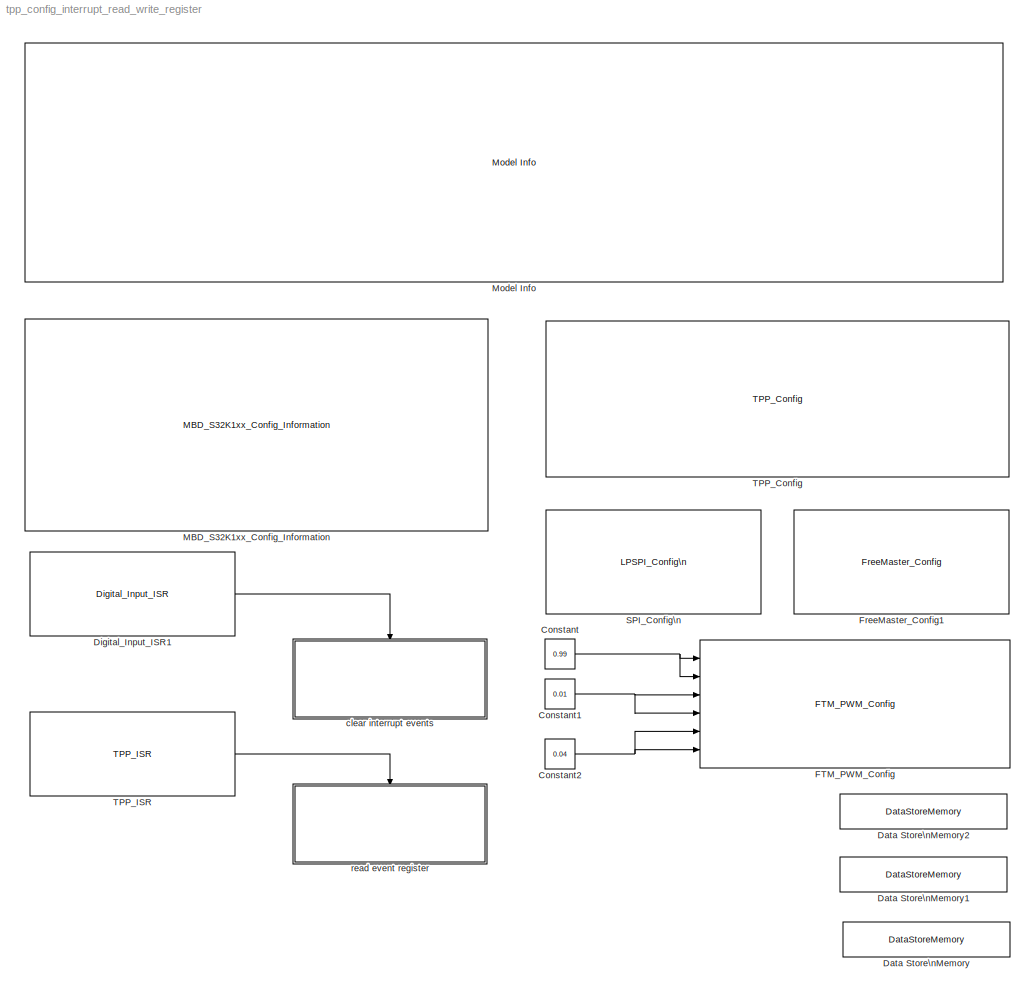
MODEL tpp_config_interrupt_read_write_register
KIND model
CONFIG InitFcn = mbd_s32k_consistency_checks(bdroot(gcs));
BLOCK [Constant] Constant
  OutDataTypeStr = single
  SID = 17
  Value = 0.99
BLOCK [Constant] Constant1
  OutDataTypeStr = single
  SID = 70
  Value = 0.01
BLOCK [Constant] Constant2
  OutDataTypeStr = single
  SID = 71
  Value = 0.04
BLOCK [DataStoreMemory] Data Store\nMemory
  DataStoreName = Button
  OutDataTypeStr = boolean
  ReadBeforeWriteMsg = warning
  SID = 67
  ShowAdditionalParam = off
  WriteAfterReadMsg = warning
  WriteAfterWriteMsg = warning
BLOCK [DataStoreMemory] Data Store\nMemory1
  DataStoreName = Interrupt
  OutDataTypeStr = boolean
  ReadBeforeWriteMsg = warning
  SID = 63
  ShowAdditionalParam = off
  WriteAfterReadMsg = warning
  WriteAfterWriteMsg = warning
BLOCK [DataStoreMemory] Data Store\nMemory2
  DataStoreName = reg
  OutDataTypeStr = uint8
  ReadBeforeWriteMsg = warning
  SID = 51
  ShowAdditionalParam = off
  WriteAfterReadMsg = warning
  WriteAfterWriteMsg = warning
BLOCK [Reference] Digital_Input_ISR1  REF=mbd_s32k1xx_ec_toolbox/GPIO Blocks/Digital_Input_ISR
  Ports = [0, 1]
  SID = 55
  SourceBlock = mbd_s32k1xx_ec_toolbox/GPIO Blocks/Digital_Input_ISR
  SourceType = gpi_s32k_isr
  gpio_pin = PTC13: [PTC13 | Port C I/O]
  irqc = on falling-edge
  prio = 15
BLOCK [Reference] FTM_PWM_Config  REF=mbd_s32k1xx_ec_toolbox/Motor Control Blocks/FTM Blocks/FTM_PWM_Config
  Ports = [6]
  SID = 5
  SourceBlock = mbd_s32k1xx_ec_toolbox/Motor Control Blocks/FTM Blocks/FTM_PWM_Config
  SourceType = FTM_s32k_pwm_config_block
  chTrigger0 = off
  chTrigger1 = off
  chTrigger2 = off
  chTrigger3 = off
  chTrigger4 = off
  chTrigger5 = off
  chTrigger6 = off
  chTrigger7 = off
  chan0En = on
  chan0Type = Independent
  chan2En = on
  chan2Type = Independent
  chan4En = on
  chan4Type = Independent
  chan6En = off
  chan6Type = Independent
  chnMatch0 = off
  chnMatch1 = off
  chnMatch2 = off
  chnMatch3 = off
  chnMatch4 = off
  chnMatch5 = off
  chnMatch6 = off
  chnMatch7 = off
  deadtimeNs = 0
  deadtimePrescaler = Divide by 1
  deadtimeTicks = 0
  deadtimeUnits = Nanoseconds
  dutyCycleCh0 = 0.002
  dutyCycleCh1 = 0.002
  dutyCycleCh2 = 0.002
  dutyCycleCh3 = 0.002
  dutyCycleCh4 = 0.002
  dutyCycleCh5 = 0.002
  dutyCycleCh6 = 0.25
  dutyCycleCh7 = 0.25
  dutyCycleSim = off
  fault_disen_0 = off
  fault_disen_1 = off
  fault_disen_2 = off
  fault_disen_3 = off
  fault_filter_0 = off
  fault_filter_1 = off
  fault_filter_2 = off
  fault_filter_3 = off
  fault_pin_0 = None
  fault_pin_1 = None
  fault_pin_2 = None
  fault_pin_3 = None
  fault_polarity_0 = Active High
  fault_polarity_1 = Active high
  fault_polarity_2 = Active high
  fault_polarity_3 = Active high
  ftmMode = Center-Aligned PWM
  ftmModule = 3
  ftmPeriod = 4000
  ftmPrescaler = Divide by 1
  ftmPwmUnits = Hz
  ftmSourceClock = 80 MHz
  initTrigger = off
  mcuTargetUpdate = on
  outFrequency = 20000
  outputComplem0 = Main inverted
  outputComplem2 = Main inverted
  outputComplem4 = Main inverted
  outputComplem6 = Main duplicated
  outputLevel0 = Low
  outputLevel1 = Low
  outputLevel2 = Low
  outputLevel3 = Low
  outputLevel4 = Low
  outputLevel5 = Low
  outputLevel6 = Low
  outputLevel7 = Low
  pinFtmCh0 = PTB8: [FTM3_CH0 | FTM Channel]
  pinFtmCh1 = PTB9: [FTM3_CH1 | FTM Channel]
  pinFtmCh2 = PTB10: [FTM3_CH2 | FTM Channel]
  pinFtmCh3 = PTB11: [FTM3_CH3 | FTM Channel]
  pinFtmCh4 = PTC10: [FTM3_CH4 | FTM Channel]
  pinFtmCh5 = PTC11: [FTM3_CH5 | FTM Channel]
  pinFtmCh6 = PTC12: [FTM3_CH6 | FTM Channel]
  pinFtmCh7 = None
  pinPolCh0 = Active Low
  pinPolCh1 = Active Low
  pinPolCh2 = Active High
  pinPolCh3 = Active High
  pinPolCh4 = Active Low
  pinPolCh5 = Active Low
  pinPolCh6 = Active Low
  pinPolCh7 = Active Low
  pwmFaultClearing = Fault control disabled
  pwmFaultFilterValue = 0
  pwmFaultInterrupt = off
  pwmFaultPinState = Safe Value
  pwmFaultPriority = 15
  pwmFaultProtection = off
  pwmSyncAutoClear = on
  pwmSyncCounterInitial = System Clock
  pwmSyncHwRouting = TRGMUX_FTM7
  pwmSyncInvert = System Clock
  pwmSyncMaxLoad = on
  pwmSyncMinLoad = on
  pwmSyncOutControl = System Clock
  pwmSyncOutMask = System Clock
  pwmSyncPoints = Update now
  pwmSyncTrg = Software trigger
  pwmSyncTrg0 = off
  pwmSyncTrg1 = off
  pwmSyncTrg2 = off
  reloadEnable = off
  reloadFrequency = 0
  reloadHCR = 0
  reloadHalfCycle = off
  reloadPriority = 15
  showAdvOpt = on
  startAfterInit = on
  swcontrol_enable = off
BLOCK [Reference] FreeMaster_Config1  REF=mbd_s32k1xx_ec_toolbox/Utility Blocks/FreeMaster_Config
  Ports = []
  SID = 62
  SourceBlock = mbd_s32k1xx_ec_toolbox/Utility Blocks/FreeMaster_Config
  SourceType = fm_s32k_config
  baudrate = 115200
  comm_buffer_size = 255
  comm_buffer_size_auto = on
  comm_rqueue_size = 32
  comm_rqueue_size_default = on
  interface = LPUART1
  isr_prio = 15
  max_rec_vars = 8
  max_scope_vars = 8
  mode = Short Interrupt
  rec_buff_size = 1024
  rec_timebase = 0
  rec_timebase_unit = seconds
  rxd = PTC6: [LPUART1_RX | Receive]
  show_adv_opts = on
  txd = PTC7: [LPUART1_TX | Transmit]
  use_recorder = on
  use_scope = on
BLOCK [Reference] MBD_S32K1xx_Config_Information  REF=mbd_s32k1xx_ec_toolbox/MBD_S32K1xx_Config_Information
  ADC_PcrCheckEnDis = on
  AMMCLIB_PcrCheckEnDis = on
  CMP_PcrCheckEnDis = on
  CSEc_PcrCheckEnDis = on
  ConfigParams_PcrCheckEnDis = on
  FM_PcrCheckEnDis = on
  FTM_Dual_Edge_Inputs_PcrCheckEnDis = on
  FTM_Hall_Sensor_Inputs_PcrCheckEnDis = on
  FTM_Input_Edge_Inputs_PcrCheckEnDis = on
  FTM_PWM_PcrCheckEnDis = on
  FTM_Quadrature_Inputs_PcrCheckEnDis = on
  FlexCAN_PcrCheckEnDis = on
  FlexIO_PcrCheckEnDis = on
  GPIO_InputPcrCheckEnDis = on
  GPIO_OutputPcrCheckEnDis = on
  LIN_PcrCheckEnDis = on
  LPI2C_PcrCheckEnDis = on
  LPSPI_PcrCheckEnDis = on
  LPTMR_PcrCheckEnDis = on
  LPUART_PcrCheckEnDis = on
  ModelRef_PcrCheckEnDis = on
  PDB0_PcrCheckEnDis = on
  PIT_PcrCheckEnDis = on
  Ports = []
  Profile_PcrCheckEnDis = on
  RTC_PcrCheckEnDis = on
  SBC_PcrCheckEnDis = on
  SID = 1
  SourceBlock = mbd_s32k1xx_ec_toolbox/MBD_S32K1xx_Config_Information
  SourceType = MBDTBX_EC_S32K
  WDOG_PcrCheckEnDis = on
  config_params = []
  disp_str = Target : S32K144-64KB_SRAM\nPackage : 100-pin\nSystem clock : 80 MHz\nXTAL clock : External 8 MHz\nCompiler : IAR\nTarget Type : FLASH\nDownload Code after build : off\nStep Tick Interrupt Priority : 15
  ds_import_enable = on
  eDMA_PcrCheckEnDis = on
  gcc_target_assemble_opts = -mcpu=cortex-m4 -mthumb -mfloat-abi=hard -mfpu=fpv4-sp-d16 -g
  gcc_target_compile_opts = -mcpu=cortex-m4 -mthumb -mfloat-abi=hard -mfpu=fpv4-sp-d16 -O1 -g -gstrict-dwarf
  gcc_target_default_lcf = on
  gcc_target_link_opts = -mcpu=cortex-m4 -mthumb -mfloat-abi=hard -mfpu=fpv4-sp-d16
  gcc_target_user_lcf = S32K144_64_flash.ld
  ghs_target_assemble_opts = -cpu=cortexm4f -fpu=vfpv4_d16
  ghs_target_compile_opts = -cpu=cortexm4f -thumb -DARM_MATH_CM4 -fpu=vfpv4_d16 -fsingle -Ogeneral -Wundef -Wimplicit-int -Wshadow -Wtrigraphs --no_commons --gnu_asm -gnu99 -gdwarf-2 -G
  ghs_target_default_lcf = on
  ghs_target_link_opts = -cpu=cortexm4f -thumb -fpu=vfpv4_d16
  ghs_target_user_lcf = S32K144_64_flash.ld
  iar_target_assemble_opts = --cpu Cortex-M4F --thumb --fpu VFPv4_sp
  iar_target_compile_opts = --cpu=Cortex-M4F --thumb --fpu=VFPv4_sp -Ol -e --debug --dlib_config normal
  iar_target_default_lcf = on
  iar_target_link_opts = --no_exceptions --vfe --inline
  iar_target_user_lcf = S32K144_64_flash.icf
  mbdt_ver = 0
  mcu_steptick_prio = 15
  mcu_steptick_timer = LPIT Channel 0
  mcu_system_clock_freq = 80
  mcu_target_name = S32K144
  mcu_target_package = 100-LQFP
  mcu_target_sram_size = 64KB
  mcu_xtal_freq = External 8
  pil_download_enable = off
  pil_download_rate = 57600
  pil_opensda_drive = Custom
  pil_opensda_drive_custom = D
  pil_uart_instance = 0
  pil_uart_rx = PTA2: [LPUART0_RX | Receive]
  pil_uart_tx = PTA3: [LPUART0_TX | Transmit]
  rbl_com_port = Custom
  rbl_com_port_custom = COM1
  rbl_download_enable = on
  rbl_download_interface = OpenSDA
  rbl_restart_request = off
  rbl_start_delay = 5000
  target_compiler = GCC
  target_memory = FLASH
BLOCK [Reference] Model Info  REF=simulink/Model-Wide\nUtilities/Model Info
  DisplayStringWithTags = Model Name: %<ModelName>\n\nDescription: %<Description>
  Frame = on
  HorizontalTextAlignment = Left
  LeftAlignmentValue = 0.02
  MaskDisplayString = Model Name: tpp_config_interrupt_read_write_register\\n\\nDescription: This model demonstrates how to use Config, Interrupt, Read and Write Register blocks of TPP.\\nInitially TPP is enabled and it has interrupt enabled. With an oscilloscope, on PHA, PHB, PHC it can be seen PWM signals.\\n\\n!!!Warnings : \\n-please disconect any load from outputs of DEVKIT-MOTORGD (eg.: coil, motor, low value res...<+1267ch>
  Ports = []
  SID = 83
  SourceBlock = simulink/Model-Wide\nUtilities/Model Info
  SourceProductBaseCode = SL
  SourceProductName = Simulink
  SourceType = CMBlock
BLOCK [Reference] SPI_Config\n  REF=mbd_s32k1xx_ec_toolbox/Communication Blocks/SPI Blocks/LPSPI_Config\n
  BaudRate = 500000
  BitOrder = MSB first
  CPHA = 1
  CPOL = 0
  ContinuousTransfer = off
  InstanceNumber = 0
  PCSPol = ActiveHigh
  Ports = []
  Priority = 2
  Role = Master
  SID = 29
  ShowAdvanced = on
  SourceBlock = mbd_s32k1xx_ec_toolbox/Communication Blocks/SPI Blocks/LPSPI_Config\n
  SourceType = lpspi_s32k_config
  TransferSize = 8
  WhichPCS = 0
  pcs0 = None
  pcs1 = None
  pcs2 = None
  pcs3 = None
  sck = PTB2: [LPSPI0_SCK | LPSPI Serial Clock I/O]
  sin = PTB3: [LPSPI0_SIN | LPSPI Serial Data Input]
  sout = PTB4: [LPSPI0_SOUT | LPSPI Serial Data Output]
BLOCK [Reference] TPP_Config  REF=mbd_msd_ec_toolbox/TPP/TPP_Config
  Ports = []
  Priority = 1
  SID = 23
  SourceBlock = mbd_msd_ec_toolbox/TPP/TPP_Config
  SourceType = tpp_s32k_config
  desatEvent = on
  desatMode = off
  framingEvent = on
  fullonMode = off
  initTppNow = on
  lockMode = off
  mcuTppIntEn = on
  overcurrentEvent = on
  overtempEvent = on
  phaseEvent = on
  prioInt = 15
  resetEvent = on
  tppCsPin = PTB5: [PTB5 | Port B I/O]
  tppDeadtime = 200
  tppEn1Pin = PTA2: [PTA2 | Port A I/O]
  tppEn2Pin = PTA2: [PTA2 | Port A I/O]
  tppFirstChHS = on
  tppInstance = 0
  tppIntPin = PTE10: [PTE10 | Port E I/O]
  tppPair0_1 = on
  tppPair2_3 = on
  tppPair4_5 = on
  tppPair6_7 = off
  tppPwmModule = Please add FTM block to workspace
  tppRstPin = PTA3: [PTA3 | Port A I/O]
  tppSpiInst = Please add SPI block to workspace
  vlsEvent = on
  writeErrEvent = on
BLOCK [Reference] TPP_ISR  REF=mbd_msd_ec_toolbox/TPP/TPP_ISR
  Ports = [0, 1]
  SID = 33
  SourceBlock = mbd_msd_ec_toolbox/TPP/TPP_ISR
  SourceType = tpp_s32k_isr
  tppInstance = 0
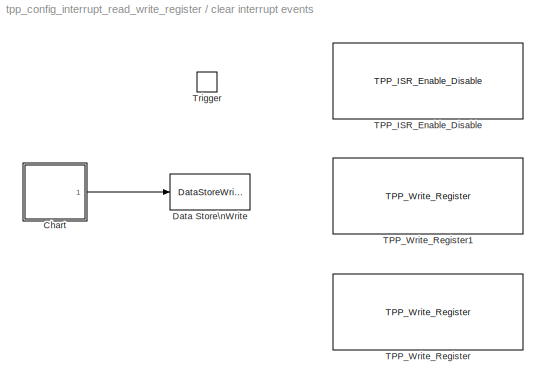
BLOCK [SubSystem] clear interrupt events
  Ports = [0, 0, 0, 1]
  RequestExecContextInheritance = off
  SID = 56
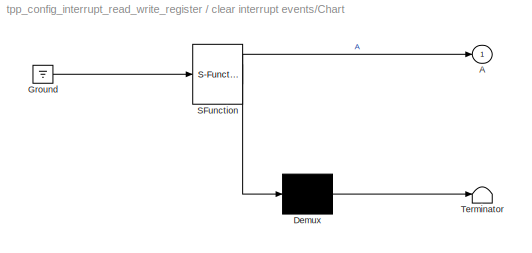
BLOCK [SubSystem] clear interrupt events/Chart
  ErrorFcn = Stateflow.Translate.translate
  PermitHierarchicalResolution = ExplicitOnly
  Ports = [0, 1]
  RequestExecContextInheritance = off
  SFBlockType = Chart
  SID = 66
  TreatAsAtomicUnit = on
BLOCK [Outport] clear interrupt events/Chart/ A
  IconDisplay = Port number
  SID = 66::6
BLOCK [Demux] clear interrupt events/Chart/ Demux 
  Outputs = 1
  Ports = [1, 1]
  SID = 66::56
BLOCK [Ground] clear interrupt events/Chart/ Ground 
  SID = 66::58
BLOCK [S-Function] clear interrupt events/Chart/ SFunction 
  EnableBusSupport = off
  FunctionName = sf_sfun
  PortCounts = [1 2]
  Ports = [1, 2]
  SFcnIsStateOwnerBlock = off
  SFunctionDeploymentMode = off
  SID = 66::55
  Tag = Stateflow S-Function tpp_config_interrupt_read_write_register 2
BLOCK [Terminator] clear interrupt events/Chart/ Terminator 
  SID = 66::57
BLOCK [DataStoreWrite] clear interrupt events/Data Store\nWrite
  DataStoreName = Button
  Ports = [1]
  SID = 68
BLOCK [Reference] clear interrupt events/TPP_ISR_Enable_Disable  REF=mbd_msd_ec_toolbox/TPP/TPP_ISR_Enable_Disable
  Ports = []
  Priority = 4
  SID = 93
  SourceBlock = mbd_msd_ec_toolbox/TPP/TPP_ISR_Enable_Disable
  SourceType = tpp_s32k_int_en_dis
  mcuTppIntEn = on
  prioInt = 15
  tppInstance = 0
BLOCK [Reference] clear interrupt events/TPP_Write_Register  REF=mbd_msd_ec_toolbox/TPP/TPP_Write_Register
  Ports = []
  SID = 54
  SourceBlock = mbd_msd_ec_toolbox/TPP/TPP_Write_Register
  SourceType = tpp_s32k_write_reg
  clearDesatEvent = on
  clearFramingEvent = on
  clearOvercurrentEvent = on
  clearOvertempEvent = on
  clearPhaseEvent = on
  clearResetEvent = on
  clearVlsEvent = on
  clearWriteErrEvent = on
  desatEvent = off
  desatMode = on
  framingEvent = on
  fullonMode = on
  lockMode = on
  overcurrentEvent = off
  overtempEvent = off
  phaseEvent = on
  resetEvent = on
  tppClint0b4 = off
  tppClint0b5 = on
  tppClint0b6 = on
  tppClint0b7 = off
  tppClint1b4 = on
  tppClint1b5 = on
  tppClint1b6 = on
  tppClint1b7 = off
  tppInstance = 0
  tppMask0b4 = off
  tppMask0b5 = on
  tppMask0b6 = off
  tppMask0b7 = off
  tppMask1b4 = on
  tppMask1b5 = on
  tppMask1b6 = off
  tppMask1b7 = off
  tppMode_b2 = off
  tppMode_b4 = off
  tppMode_b5 = off
  tppMode_b6 = on
  tppMode_b7 = off
  tppRegister = TPP_CLINT1
  vlsEvent = off
  writeErrEvent = on
BLOCK [Reference] clear interrupt events/TPP_Write_Register1  REF=mbd_msd_ec_toolbox/TPP/TPP_Write_Register
  Ports = []
  SID = 60
  SourceBlock = mbd_msd_ec_toolbox/TPP/TPP_Write_Register
  SourceType = tpp_s32k_write_reg
  clearDesatEvent = on
  clearFramingEvent = on
  clearOvercurrentEvent = on
  clearOvertempEvent = on
  clearPhaseEvent = on
  clearResetEvent = on
  clearVlsEvent = on
  clearWriteErrEvent = on
  desatEvent = off
  desatMode = on
  framingEvent = on
  fullonMode = on
  lockMode = on
  overcurrentEvent = off
  overtempEvent = off
  phaseEvent = on
  resetEvent = on
  tppClint0b4 = off
  tppClint0b5 = on
  tppClint0b6 = on
  tppClint0b7 = off
  tppClint1b4 = on
  tppClint1b5 = on
  tppClint1b6 = on
  tppClint1b7 = off
  tppInstance = 0
  tppMask0b4 = off
  tppMask0b5 = on
  tppMask0b6 = off
  tppMask0b7 = off
  tppMask1b4 = on
  tppMask1b5 = on
  tppMask1b6 = off
  tppMask1b7 = off
  tppMode_b2 = off
  tppMode_b4 = off
  tppMode_b5 = off
  tppMode_b6 = on
  tppMode_b7 = off
  tppRegister = TPP_CLINT0
  vlsEvent = off
  writeErrEvent = on
BLOCK [TriggerPort] clear interrupt events/Trigger
  PortDimensions = 1
  Ports = []
  SID = 57
  StatesWhenEnabling = held
  TriggerType = function-call
  VariantControl = Variant
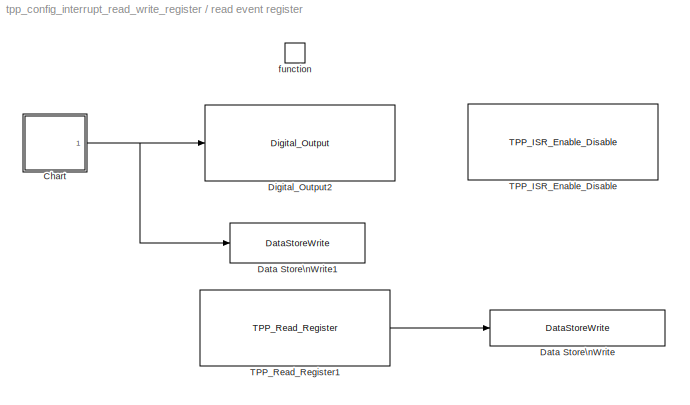
BLOCK [SubSystem] read event register
  Ports = [0, 0, 0, 1]
  RequestExecContextInheritance = off
  SID = 39
  TreatAsAtomicUnit = on
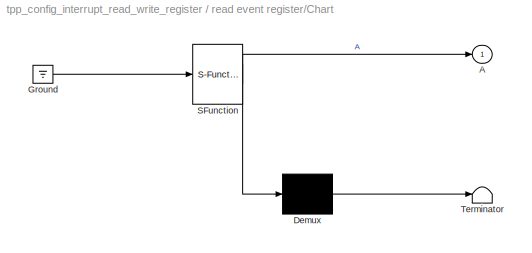
BLOCK [SubSystem] read event register/Chart
  ErrorFcn = Stateflow.Translate.translate
  PermitHierarchicalResolution = ExplicitOnly
  Ports = [0, 1]
  RequestExecContextInheritance = off
  SFBlockType = Chart
  SID = 46
  TreatAsAtomicUnit = on
BLOCK [Outport] read event register/Chart/ A
  IconDisplay = Port number
  SID = 46::6
BLOCK [Demux] read event register/Chart/ Demux 
  Outputs = 1
  Ports = [1, 1]
  SID = 46::56
BLOCK [Ground] read event register/Chart/ Ground 
  SID = 46::58
BLOCK [S-Function] read event register/Chart/ SFunction 
  EnableBusSupport = off
  FunctionName = sf_sfun
  PortCounts = [1 2]
  Ports = [1, 2]
  SFcnIsStateOwnerBlock = off
  SFunctionDeploymentMode = off
  SID = 46::55
  Tag = Stateflow S-Function tpp_config_interrupt_read_write_register 1
BLOCK [Terminator] read event register/Chart/ Terminator 
  SID = 46::57
BLOCK [DataStoreWrite] read event register/Data Store\nWrite
  DataStoreName = reg
  Ports = [1]
  SID = 52
BLOCK [DataStoreWrite] read event register/Data Store\nWrite1
  DataStoreName = Interrupt
  Ports = [1]
  SID = 65
BLOCK [Reference] read event register/Digital_Output2  REF=mbd_s32k1xx_ec_toolbox/GPIO Blocks/Digital_Output
  Ports = [1]
  SID = 36
  SourceBlock = mbd_s32k1xx_ec_toolbox/GPIO Blocks/Digital_Output
  SourceType = gpio_s32k_output
  drive_strength = Low
  gpio_pin = PTD16: [PTD16 | Port D I/O]
  init_val = Low
BLOCK [Reference] read event register/TPP_ISR_Enable_Disable  REF=mbd_msd_ec_toolbox/TPP/TPP_ISR_Enable_Disable
  Ports = []
  Priority = 4
  SID = 92
  SourceBlock = mbd_msd_ec_toolbox/TPP/TPP_ISR_Enable_Disable
  SourceType = tpp_s32k_int_en_dis
  mcuTppIntEn = off
  prioInt = 15
  tppInstance = 0
BLOCK [Reference] read event register/TPP_Read_Register1  REF=mbd_msd_ec_toolbox/TPP/TPP_Read_Register
  Ports = [0, 1]
  SID = 50
  SourceBlock = mbd_msd_ec_toolbox/TPP/TPP_Read_Register
  SourceType = tpp_s32k14_read_reg
  tppInstance = 0
  tppRegister = TPP_Status_Register_0
BLOCK [TriggerPort] read event register/function
  Ports = []
  SID = 41
  StatesWhenEnabling = held
  TriggerType = function-call
  VariantControl = Variant
NET Constant1:1 -> FTM_PWM_Config:3, FTM_PWM_Config:4
NET Constant2:1 -> FTM_PWM_Config:5, FTM_PWM_Config:6
NET Constant:1 -> FTM_PWM_Config:1, FTM_PWM_Config:2
LINE Digital_Input_ISR1:1 -> clear interrupt events:trigger
LINE TPP_ISR:1 -> read event register:trigger
LINE clear interrupt events/Chart/ Demux :1 -> clear interrupt events/Chart/ Terminator :1
LINE clear interrupt events/Chart/ Ground :1 -> clear interrupt events/Chart/ SFunction :1
LINE clear interrupt events/Chart/ SFunction :1 -> clear interrupt events/Chart/ Demux :1
LINE clear interrupt events/Chart/ SFunction :2 -> clear interrupt events/Chart/ A:1
LINE clear interrupt events/Chart:1 -> clear interrupt events/Data Store\nWrite:1
LINE read event register/Chart/ Demux :1 -> read event register/Chart/ Terminator :1
LINE read event register/Chart/ Ground :1 -> read event register/Chart/ SFunction :1
LINE read event register/Chart/ SFunction :1 -> read event register/Chart/ Demux :1
LINE read event register/Chart/ SFunction :2 -> read event register/Chart/ A:1
NET read event register/Chart:1 -> read event register/Data Store\nWrite1:1, read event register/Digital_Output2:1
LINE read event register/TPP_Read_Register1:1 -> read event register/Data Store\nWrite:1
note: NET lines group one-source signal fan-out (src -> all destinations, sorted); 1:1 wires keep LINE
CHART read event register/Chart states=2 transitions=3
  STATE_LABEL 'A'
  STATE_LABEL 'A1'
CHART clear interrupt events/Chart states=2 transitions=3
  STATE_LABEL 'A'
  STATE_LABEL 'A1'
